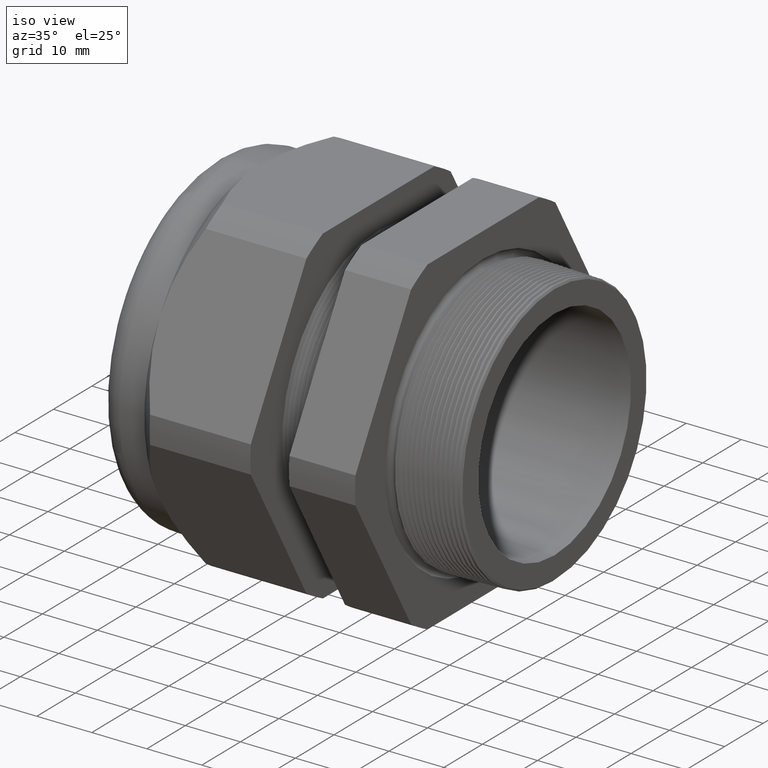
[diagram: clean part render]
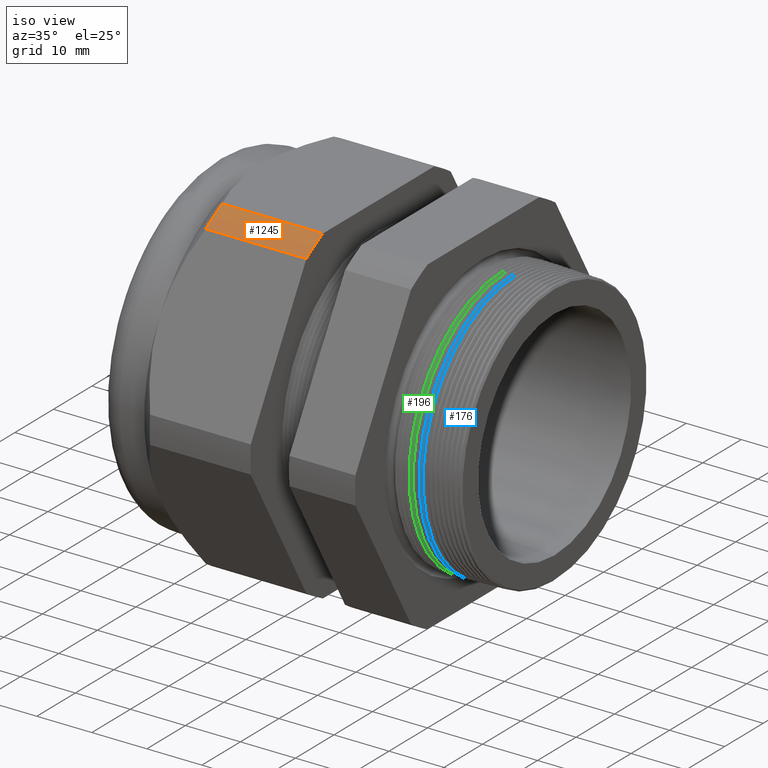
[diagram: same view with three faces highlighted in distinct colors, each labeled with its STEP entity id]
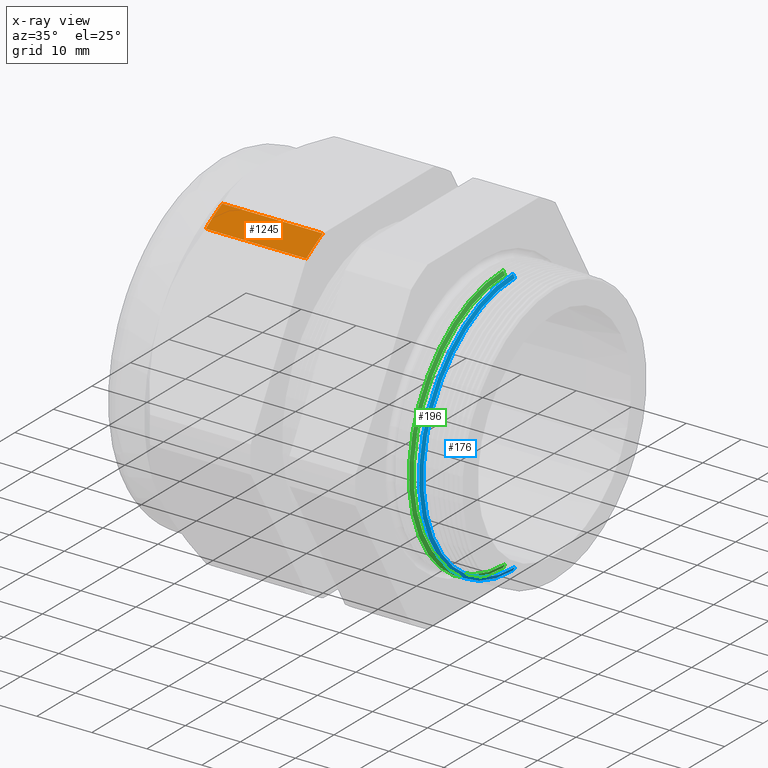
[diagram: x-ray of the same camera — body ghosted, the three highlighted faces saturated]
A machine part, iso view with three faces highlighted in distinct colors.
The next image is the same camera in x-ray (body ghosted, the three faces saturated) — at least one of them is partly hidden behind the body in this view.
Their STEP definitions:

[orange] entity #1245 — the highlighted cylindrical surface (partial cylindrical patch) has radius 33.2689 mm, axis along (-1, 0, 0).
#1168 = EDGE_CURVE ( 'NONE', #1186, #1169, #3771, .T. ) ;
#1169 = VERTEX_POINT ( 'NONE', #3827 ) ;
#1170 = ORIENTED_EDGE ( 'NONE', *, *, #1171, .F. ) ;
#1171 = EDGE_CURVE ( 'NONE', #1172, #1169, #3826, .T. ) ;
#1172 = VERTEX_POINT ( 'NONE', #3822 ) ;
#1173 = ORIENTED_EDGE ( 'NONE', *, *, #1174, .F. ) ;
#1174 = EDGE_CURVE ( 'NONE', #1189, #1172, #3821, .T. ) ;
#1186 = VERTEX_POINT ( 'NONE', #3857 ) ;
#1188 = EDGE_CURVE ( 'NONE', #1189, #1186, #3842, .T. ) ;
#1189 = VERTEX_POINT ( 'NONE', #3830 ) ;
#1245 = ADVANCED_FACE ( 'NONE', ( #3954 ), #3953, .T. ) ;
#1246 = EDGE_LOOP ( 'NONE', ( #1247, #1248, #1170, #1173 ) ) ;
#1247 = ORIENTED_EDGE ( 'NONE', *, *, #1188, .T. ) ;
#1248 = ORIENTED_EDGE ( 'NONE', *, *, #1168, .T. ) ;
#3768 = DIRECTION ( 'NONE',  ( 0.0000000000000000000, 0.0000000000000000000, -1.000000000000000000 ) ) ;
#3769 = DIRECTION ( 'NONE',  ( 1.000000000000000000, 0.0000000000000000000, 0.0000000000000000000 ) ) ;
#3770 = AXIS2_PLACEMENT_3D ( 'NONE', #3775, #3769, #3768 ) ;
#3771 = CIRCLE ( 'NONE', #3770, 1.309800000000000100 ) ;
#3775 = CARTESIAN_POINT ( 'NONE',  ( -1.779492000000000300, 0.0000000000000000000, 0.0000000000000000000 ) ) ;
#3817 = DIRECTION ( 'NONE',  ( 0.0000000000000000000, 0.0000000000000000000, -1.000000000000000000 ) ) ;
#3818 = DIRECTION ( 'NONE',  ( 1.000000000000000000, 0.0000000000000000000, 0.0000000000000000000 ) ) ;
#3819 = CARTESIAN_POINT ( 'NONE',  ( -1.058802799999999600, 0.0000000000000000000, 0.0000000000000000000 ) ) ;
#3820 = AXIS2_PLACEMENT_3D ( 'NONE', #3819, #3818, #3817 ) ;
#3821 = CIRCLE ( 'NONE', #3820, 1.309800000000000100 ) ;
#3822 = CARTESIAN_POINT ( 'NONE',  ( -1.058802799999999600, -0.7376671049631146100, 1.082323095131642300 ) ) ;
#3823 = DIRECTION ( 'NONE',  ( -1.000000000000000000, 0.0000000000000000000, 0.0000000000000000000 ) ) ;
#3824 = VECTOR ( 'NONE', #3823, 39.37007874015748100 ) ;
#3825 = CARTESIAN_POINT ( 'NONE',  ( 0.2000000000000000400, -0.7376671049631146100, 1.082323095131642300 ) ) ;
#3826 = LINE ( 'NONE', #3825, #3824 ) ;
#3827 = CARTESIAN_POINT ( 'NONE',  ( -1.779492000000000100, -0.7376671049631146100, 1.082323095131642300 ) ) ;
#3830 = CARTESIAN_POINT ( 'NONE',  ( -1.058802799999999600, -0.5684857430050480600, 1.179999999999999300 ) ) ;
#3831 = DIRECTION ( 'NONE',  ( -1.000000000000000000, 0.0000000000000000000, 0.0000000000000000000 ) ) ;
#3832 = VECTOR ( 'NONE', #3831, 39.37007874015748100 ) ;
#3841 = CARTESIAN_POINT ( 'NONE',  ( 0.2000000000000000400, -0.5684857430050480600, 1.179999999999999300 ) ) ;
#3842 = LINE ( 'NONE', #3841, #3832 ) ;
#3857 = CARTESIAN_POINT ( 'NONE',  ( -1.779492000000000300, -0.5684857430050480600, 1.179999999999999300 ) ) ;
#3949 = DIRECTION ( 'NONE',  ( 0.0000000000000000000, 0.0000000000000000000, 1.000000000000000000 ) ) ;
#3950 = DIRECTION ( 'NONE',  ( -1.000000000000000000, 0.0000000000000000000, 0.0000000000000000000 ) ) ;
#3951 = CARTESIAN_POINT ( 'NONE',  ( 0.2000000000000000400, 0.0000000000000000000, 0.0000000000000000000 ) ) ;
#3952 = AXIS2_PLACEMENT_3D ( 'NONE', #3951, #3950, #3949 ) ;
#3953 = CYLINDRICAL_SURFACE ( 'NONE', #3952, 1.309800000000000100 ) ;
#3954 = FACE_OUTER_BOUND ( 'NONE', #1246, .T. ) ;

[blue] entity #176 — the highlighted conical surface has half-angle 61.5 deg.
#176 = ADVANCED_FACE ( 'NONE', ( #1869 ), #1868, .T. ) ;
#177 = EDGE_LOOP ( 'NONE', ( #178, #179, #181, #233 ) ) ;
#178 = ORIENTED_EDGE ( 'NONE', *, *, #586, .F. ) ;
#179 = ORIENTED_EDGE ( 'NONE', *, *, #180, .F. ) ;
#180 = EDGE_CURVE ( 'NONE', #524, #523, #1931, .T. ) ;
#181 = ORIENTED_EDGE ( 'NONE', *, *, #639, .T. ) ;
#233 = ORIENTED_EDGE ( 'NONE', *, *, #458, .T. ) ;
#458 = EDGE_CURVE ( 'NONE', #636, #587, #2336, .T. ) ;
#523 = VERTEX_POINT ( 'NONE', #2502 ) ;
#524 = VERTEX_POINT ( 'NONE', #2501 ) ;
#586 = EDGE_CURVE ( 'NONE', #523, #587, #2581, .T. ) ;
#587 = VERTEX_POINT ( 'NONE', #2577 ) ;
#636 = VERTEX_POINT ( 'NONE', #2666 ) ;
#639 = EDGE_CURVE ( 'NONE', #524, #636, #2721, .T. ) ;
#1865 = DIRECTION ( 'NONE',  ( 0.0000000000000000000, 0.0000000000000000000, 1.000000000000000000 ) ) ;
#1866 = DIRECTION ( 'NONE',  ( -1.000000000000000000, 0.0000000000000000000, 0.0000000000000000000 ) ) ;
#1867 = AXIS2_PLACEMENT_3D ( 'NONE', #1874, #1866, #1865 ) ;
#1868 = CONICAL_SURFACE ( 'NONE', #1867, 0.9653919086084178400, 1.073377489976505200 ) ;
#1869 = FACE_OUTER_BOUND ( 'NONE', #177, .T. ) ;
#1874 = CARTESIAN_POINT ( 'NONE',  ( -0.09999999999999996400, 0.0000000000000000000, 0.0000000000000000000 ) ) ;
#1927 = DIRECTION ( 'NONE',  ( 0.0000000000000000000, 0.0000000000000000000, -1.000000000000000000 ) ) ;
#1928 = DIRECTION ( 'NONE',  ( 1.000000000000000000, 0.0000000000000000000, 0.0000000000000000000 ) ) ;
#1929 = CARTESIAN_POINT ( 'NONE',  ( -0.08347073567907534200, 0.0000000000000000000, 0.0000000000000000000 ) ) ;
#1930 = AXIS2_PLACEMENT_3D ( 'NONE', #1929, #1928, #1927 ) ;
#1931 = CIRCLE ( 'NONE', #1930, 0.9349487908145878200 ) ;
#2328 = DIRECTION ( 'NONE',  ( 0.0000000000000000000, 0.0000000000000000000, 1.000000000000000000 ) ) ;
#2329 = DIRECTION ( 'NONE',  ( 1.000000000000000000, 0.0000000000000000000, 0.0000000000000000000 ) ) ;
#2330 = CARTESIAN_POINT ( 'NONE',  ( -0.09697120011612848900, 0.0000000000000000000, 0.0000000000000000000 ) ) ;
#2331 = AXIS2_PLACEMENT_3D ( 'NONE', #2330, #2329, #2328 ) ;
#2336 = CIRCLE ( 'NONE', #2331, 0.9598135531626821300 ) ;
#2501 = CARTESIAN_POINT ( 'NONE',  ( -0.08347073567907534200, 0.0000000000000000000, 0.9349487908145878200 ) ) ;
#2502 = CARTESIAN_POINT ( 'NONE',  ( -0.08347073567907534200, 1.160207319848350000E-016, -0.9349487908145878200 ) ) ;
#2577 = CARTESIAN_POINT ( 'NONE',  ( -0.09697120011612848900, 1.175531422544454800E-016, -0.9598135531626821300 ) ) ;
#2578 = DIRECTION ( 'NONE',  ( -0.4771587602596150100, 1.076240564057390400E-016, -0.8788171126619618300 ) ) ;
#2579 = VECTOR ( 'NONE', #2578, 39.37007874015748100 ) ;
#2580 = CARTESIAN_POINT ( 'NONE',  ( -0.09999999999999996400, 1.182264110800053100E-016, -0.9653919086084178400 ) ) ;
#2581 = LINE ( 'NONE', #2580, #2579 ) ;
#2666 = CARTESIAN_POINT ( 'NONE',  ( -0.09697120011612848900, 0.0000000000000000000, 0.9598135531626821300 ) ) ;
#2718 = DIRECTION ( 'NONE',  ( -0.4771587602596150100, 0.0000000000000000000, 0.8788171126619618300 ) ) ;
#2719 = VECTOR ( 'NONE', #2718, 39.37007874015748100 ) ;
#2720 = CARTESIAN_POINT ( 'NONE',  ( -0.09999999999999996400, 0.0000000000000000000, 0.9653919086084178400 ) ) ;
#2721 = LINE ( 'NONE', #2720, #2719 ) ;

[green] entity #196 — the highlighted conical surface has half-angle 61.5 deg.
#196 = ADVANCED_FACE ( 'NONE', ( #1915 ), #1914, .T. ) ;
#197 = EDGE_LOOP ( 'NONE', ( #198, #199, #201, #202 ) ) ;
#198 = ORIENTED_EDGE ( 'NONE', *, *, #620, .F. ) ;
#199 = ORIENTED_EDGE ( 'NONE', *, *, #200, .F. ) ;
#200 = EDGE_CURVE ( 'NONE', #625, #624, #1913, .T. ) ;
#201 = ORIENTED_EDGE ( 'NONE', *, *, #675, .T. ) ;
#202 = ORIENTED_EDGE ( 'NONE', *, *, #449, .T. ) ;
#449 = EDGE_CURVE ( 'NONE', #676, #658, #2287, .T. ) ;
#620 = EDGE_CURVE ( 'NONE', #624, #658, #2689, .T. ) ;
#624 = VERTEX_POINT ( 'NONE', #2685 ) ;
#625 = VERTEX_POINT ( 'NONE', #2684 ) ;
#658 = VERTEX_POINT ( 'NONE', #2742 ) ;
#675 = EDGE_CURVE ( 'NONE', #625, #676, #2776, .T. ) ;
#676 = VERTEX_POINT ( 'NONE', #2772 ) ;
#1905 = DIRECTION ( 'NONE',  ( 0.0000000000000000000, 0.0000000000000000000, -1.000000000000000000 ) ) ;
#1906 = DIRECTION ( 'NONE',  ( 1.000000000000000000, 0.0000000000000000000, 0.0000000000000000000 ) ) ;
#1907 = CARTESIAN_POINT ( 'NONE',  ( -0.1534707356790753500, 0.0000000000000000000, 0.0000000000000000000 ) ) ;
#1908 = AXIS2_PLACEMENT_3D ( 'NONE', #1907, #1906, #1905 ) ;
#1909 = DIRECTION ( 'NONE',  ( 0.0000000000000000000, 0.0000000000000000000, 1.000000000000000000 ) ) ;
#1910 = DIRECTION ( 'NONE',  ( -1.000000000000000000, 0.0000000000000000000, 0.0000000000000000000 ) ) ;
#1911 = CARTESIAN_POINT ( 'NONE',  ( -0.1699999999999999600, 0.0000000000000000000, 0.0000000000000000000 ) ) ;
#1912 = AXIS2_PLACEMENT_3D ( 'NONE', #1911, #1910, #1909 ) ;
#1913 = CIRCLE ( 'NONE', #1908, 0.9349487908145878200 ) ;
#1914 = CONICAL_SURFACE ( 'NONE', #1912, 0.9653919086084178400, 1.073377489976505200 ) ;
#1915 = FACE_OUTER_BOUND ( 'NONE', #197, .T. ) ;
#2280 = DIRECTION ( 'NONE',  ( 1.000000000000000000, 0.0000000000000000000, 0.0000000000000000000 ) ) ;
#2281 = CARTESIAN_POINT ( 'NONE',  ( -0.1679808000774189700, 0.0000000000000000000, 0.0000000000000000000 ) ) ;
#2282 = AXIS2_PLACEMENT_3D ( 'NONE', #2281, #2280, #2344 ) ;
#2287 = CIRCLE ( 'NONE', #2282, 0.9616730049779274000 ) ;
#2344 = DIRECTION ( 'NONE',  ( 0.0000000000000000000, 0.0000000000000000000, 1.000000000000000000 ) ) ;
#2684 = CARTESIAN_POINT ( 'NONE',  ( -0.1534707356790753500, 0.0000000000000000000, 0.9349487908145878200 ) ) ;
#2685 = CARTESIAN_POINT ( 'NONE',  ( -0.1534707356790753500, 1.161345905705204400E-016, -0.9349487908145878200 ) ) ;
#2686 = DIRECTION ( 'NONE',  ( -0.4771587602596150100, 1.076240564057390400E-016, -0.8788171126619618300 ) ) ;
#2687 = VECTOR ( 'NONE', #2686, 39.37007874015748100 ) ;
#2688 = CARTESIAN_POINT ( 'NONE',  ( -0.1699999999999999600, 1.182264110800053100E-016, -0.9653919086084178400 ) ) ;
#2689 = LINE ( 'NONE', #2688, #2687 ) ;
#2742 = CARTESIAN_POINT ( 'NONE',  ( -0.1679808000774189700, 1.177774679689717400E-016, -0.9616730049779274000 ) ) ;
#2772 = CARTESIAN_POINT ( 'NONE',  ( -0.1679808000774189700, 0.0000000000000000000, 0.9616730049779274000 ) ) ;
#2773 = DIRECTION ( 'NONE',  ( -0.4771587602596150100, 0.0000000000000000000, 0.8788171126619618300 ) ) ;
#2774 = VECTOR ( 'NONE', #2773, 39.37007874015748100 ) ;
#2775 = CARTESIAN_POINT ( 'NONE',  ( -0.1699999999999999600, 0.0000000000000000000, 0.9653919086084178400 ) ) ;
#2776 = LINE ( 'NONE', #2775, #2774 ) ;